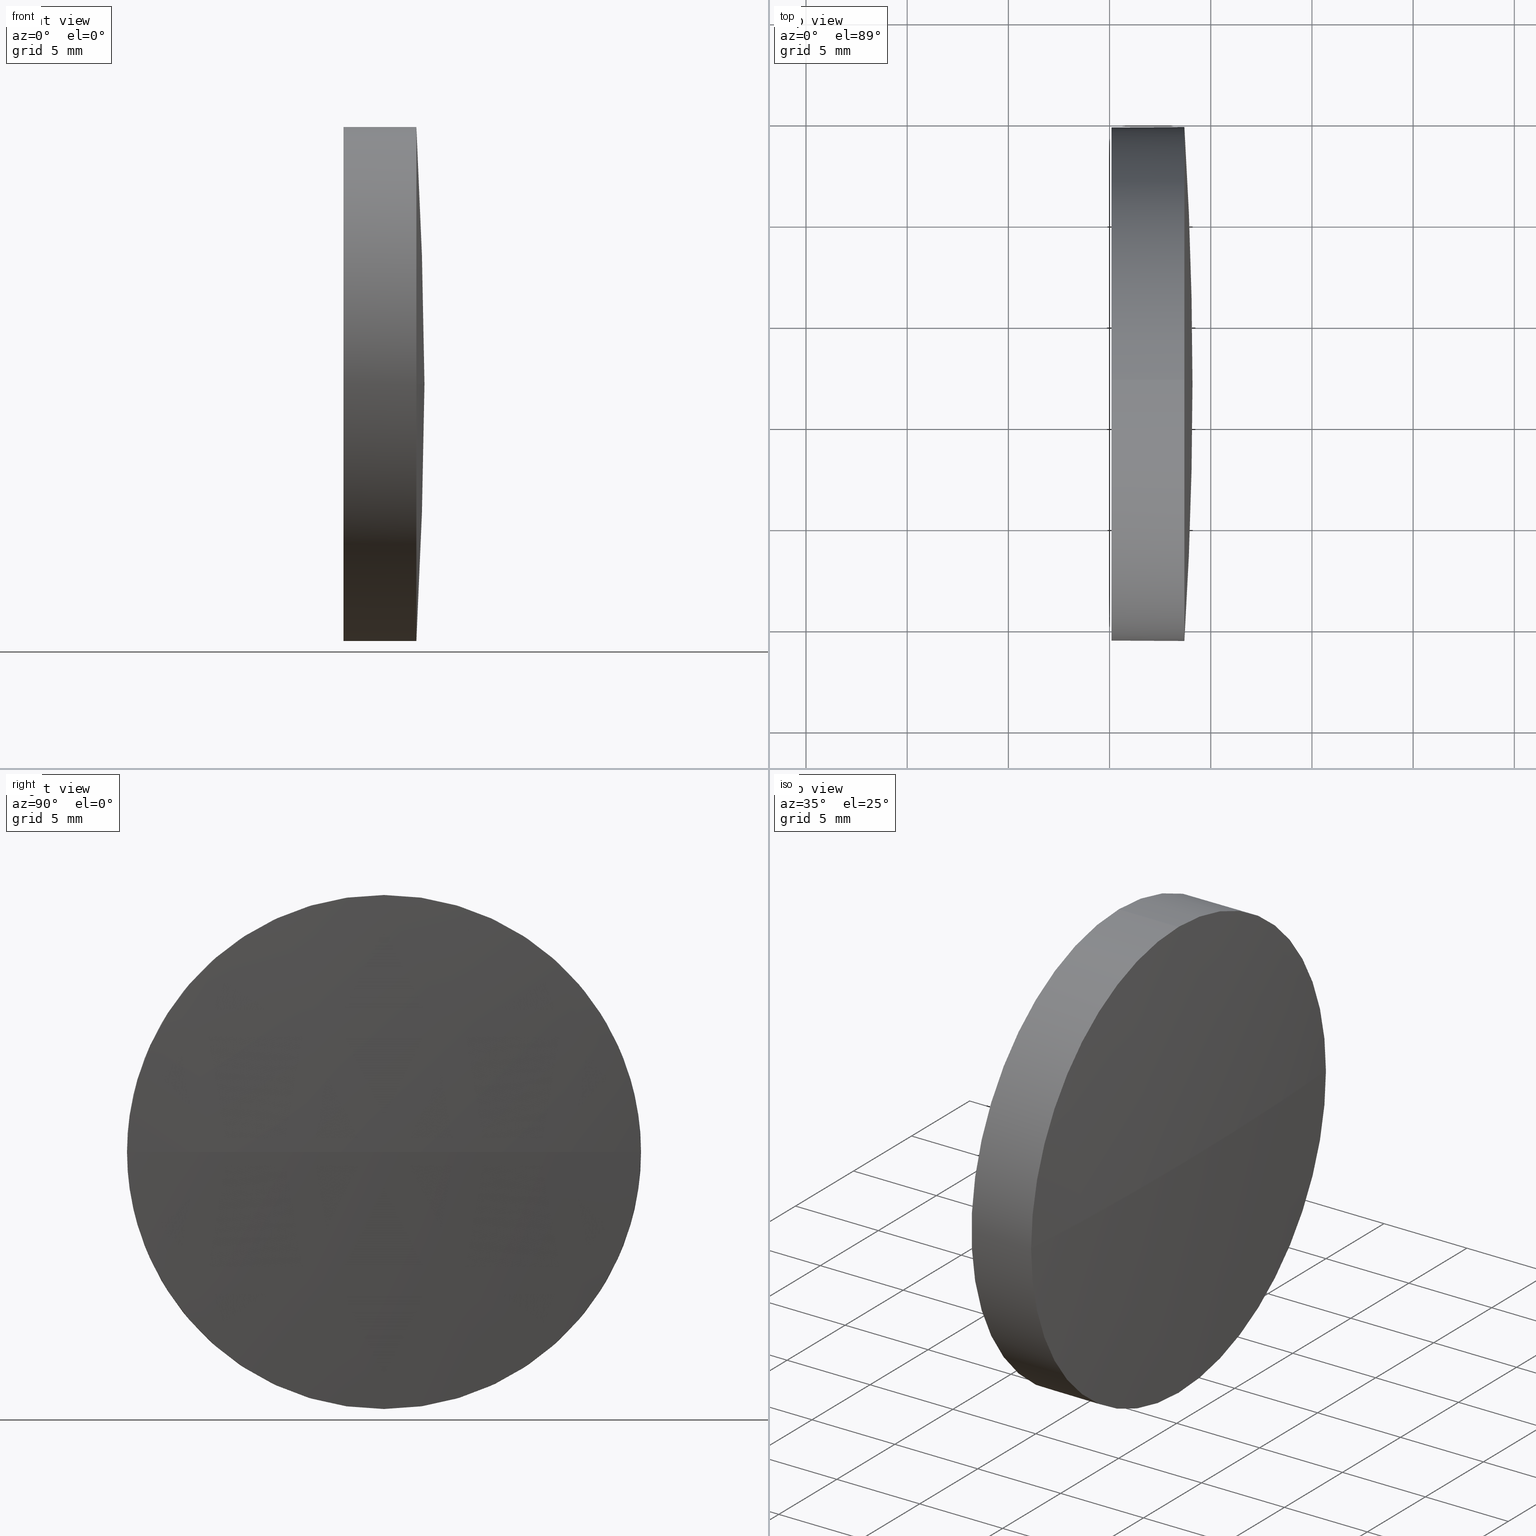
[diagram: canonical four-view strip — front | top / right | iso, engineering-drawing reading convention]
A machine part, canonical four-view strip (front | top / right | iso — engineering-drawing reading convention). The complete STEP part file that produces these views, byte-faithful:
ISO-10303-21;
HEADER;
FILE_DESCRIPTION (( 'STEP AP214' ),
    '1' );
FILE_NAME ('100493.STEP',
    '2019-06-12T05:49:18',
    ( '' ),
    ( '' ),
    'SwSTEP 2.0',
    'SolidWorks 2016',
    '' );
FILE_SCHEMA (( 'AUTOMOTIVE_DESIGN' ));
ENDSEC;

DATA;
#1 = UNCERTAINTY_MEASURE_WITH_UNIT (LENGTH_MEASURE( 1.000000000000000100E-005 ), #46, 'distance_accuracy_value', 'NONE');
#2 = ORIENTED_EDGE ( 'NONE', *, *, #169, .F. ) ;
#3 = DIRECTION ( 'NONE',  ( 0.0000000000000000000, 0.0000000000000000000, 1.000000000000000000 ) ) ;
#4 = DIRECTION ( 'NONE',  ( -1.000000000000000000, 0.0000000000000000000, 0.0000000000000000000 ) ) ;
#5 = PRESENTATION_STYLE_ASSIGNMENT (( #133 ) ) ;
#6 = DIRECTION ( 'NONE',  ( 0.0000000000000000000, 0.0000000000000000000, 1.000000000000000000 ) ) ;
#7 = PRODUCT_RELATED_PRODUCT_CATEGORY ( 'part', '', ( #56 ) ) ;
#8 = ORIENTED_EDGE ( 'NONE', *, *, #37, .T. ) ;
#9 = CARTESIAN_POINT ( 'NONE',  ( 0.0000000000000000000, 0.0000000000000000000, 0.0000000000000000000 ) ) ;
#10 = DIRECTION ( 'NONE',  ( -1.000000000000000000, -0.0000000000000000000, -0.0000000000000000000 ) ) ;
#11 =( GEOMETRIC_REPRESENTATION_CONTEXT ( 3 ) GLOBAL_UNCERTAINTY_ASSIGNED_CONTEXT ( ( #141 ) ) GLOBAL_UNIT_ASSIGNED_CONTEXT ( ( #45, #119, #19 ) ) REPRESENTATION_CONTEXT ( 'NONE', 'WORKASPACE' ) );
#12 = PRODUCT_DEFINITION_SHAPE ( 'NONE', 'NONE',  #106 ) ;
#13 = VERTEX_POINT ( 'NONE', #171 ) ;
#14 = ORIENTED_EDGE ( 'NONE', *, *, #118, .F. ) ;
#15 = CIRCLE ( 'NONE', #86, 12.70000000000001700 ) ;
#16 = AXIS2_PLACEMENT_3D ( 'NONE', #103, #161, #6 ) ;
#17 = DIRECTION ( 'NONE',  ( 0.0000000000000000000, -1.224646799147353200E-016, 1.000000000000000000 ) ) ;
#18 = AXIS2_PLACEMENT_3D ( 'NONE', #125, #163, #32 ) ;
#19 =( NAMED_UNIT ( * ) SI_UNIT ( $, .STERADIAN. ) SOLID_ANGLE_UNIT ( ) );
#20 = CIRCLE ( 'NONE', #68, 201.8124999999973900 ) ;
#21 = EDGE_CURVE ( 'NONE', #155, #126, #38, .T. ) ;
#22 = ORIENTED_EDGE ( 'NONE', *, *, #185, .F. ) ;
#23 = CYLINDRICAL_SURFACE ( 'NONE', #16, 12.70000000000001700 ) ;
#24 = AXIS2_PLACEMENT_3D ( 'NONE', #120, #177, #173 ) ;
#25 = CIRCLE ( 'NONE', #48, 12.70000000000001700 ) ;
#26 = LINE ( 'NONE', #80, #147 ) ;
#27 = MANIFOLD_SOLID_BREP ( '��ת1', #51 ) ;
#28 = CARTESIAN_POINT ( 'NONE',  ( 433.6975226091756200, 147.0190194296691600, 0.0000000000000000000 ) ) ;
#29 = SURFACE_SIDE_STYLE ('',( #159 ) ) ;
#30 = CARTESIAN_POINT ( 'NONE',  ( 433.6975226091756200, 147.0190194296691600, 12.70000000000001700 ) ) ;
#31 = DIRECTION ( 'NONE',  ( 0.0000000000000000000, 0.0000000000000000000, 1.000000000000000000 ) ) ;
#32 = DIRECTION ( 'NONE',  ( 0.0000000000000000000, -1.000000000000000000, 0.0000000000000000000 ) ) ;
#33 = ORIENTED_EDGE ( 'NONE', *, *, #167, .F. ) ;
#34 = DIRECTION ( 'NONE',  ( -1.000000000000000000, -0.0000000000000000000, -0.0000000000000000000 ) ) ;
#35 = EDGE_CURVE ( 'NONE', #36, #123, #26, .T. ) ;
#36 = VERTEX_POINT ( 'NONE', #30 ) ;
#37 = EDGE_CURVE ( 'NONE', #126, #36, #69, .T. ) ;
#38 = CIRCLE ( 'NONE', #72, 12.70000000000001700 ) ;
#39 = ORIENTED_EDGE ( 'NONE', *, *, #37, .F. ) ;
#40 = PRESENTATION_LAYER_ASSIGNMENT (  '', '', ( #83 ) ) ;
#41 = CARTESIAN_POINT ( 'NONE',  ( 430.0975226091756000, 147.0190194296691600, 0.0000000000000000000 ) ) ;
#42 = ORIENTED_EDGE ( 'NONE', *, *, #162, .F. ) ;
#43 = ADVANCED_FACE ( 'NONE', ( #182 ), #23, .T. ) ;
#44 =( NAMED_UNIT ( * ) SI_UNIT ( $, .STERADIAN. ) SOLID_ANGLE_UNIT ( ) );
#45 =( LENGTH_UNIT ( ) NAMED_UNIT ( * ) SI_UNIT ( .MILLI., .METRE. ) );
#46 =( LENGTH_UNIT ( ) NAMED_UNIT ( * ) SI_UNIT ( .MILLI., .METRE. ) );
#47 = CARTESIAN_POINT ( 'NONE',  ( 433.6975226091756200, 147.0190194296691600, 0.0000000000000000000 ) ) ;
#48 = AXIS2_PLACEMENT_3D ( 'NONE', #47, #10, #79 ) ;
#49 = DIRECTION ( 'NONE',  ( 0.0000000000000000000, 0.0000000000000000000, -1.000000000000000000 ) ) ;
#50 = EDGE_LOOP ( 'NONE', ( #42, #73, #170, #98 ) ) ;
#51 = CLOSED_SHELL ( 'NONE', ( #43, #130, #131, #135, #105 ) ) ;
#52 = CYLINDRICAL_SURFACE ( 'NONE', #24, 12.70000000000001700 ) ;
#53 = AXIS2_PLACEMENT_3D ( 'NONE', #41, #90, #57 ) ;
#54 = ORIENTED_EDGE ( 'NONE', *, *, #162, .T. ) ;
#55 = AXIS2_PLACEMENT_3D ( 'NONE', #112, #17, #62 ) ;
#56 = PRODUCT ( '100493', '100493', '', ( #180 ) ) ;
#57 = DIRECTION ( 'NONE',  ( 0.0000000000000000000, 0.0000000000000000000, -1.000000000000000000 ) ) ;
#58 =( NAMED_UNIT ( * ) PLANE_ANGLE_UNIT ( ) SI_UNIT ( $, .RADIAN. ) );
#59 = APPLICATION_CONTEXT ( 'automotive_design' ) ;
#60 = PRODUCT_DEFINITION_CONTEXT ( 'detailed design', #59, 'design' ) ;
#61 =( LENGTH_UNIT ( ) NAMED_UNIT ( * ) SI_UNIT ( .MILLI., .METRE. ) );
#62 = DIRECTION ( 'NONE',  ( 0.0000000000000000000, -1.000000000000000000, -1.224646799147353200E-016 ) ) ;
#63 = CARTESIAN_POINT ( 'NONE',  ( 434.0975226091756000, 147.0190194296694700, 0.0000000000000000000 ) ) ;
#64 = DIRECTION ( 'NONE',  ( 0.0000000000000000000, 0.0000000000000000000, 1.000000000000000000 ) ) ;
#65 = CARTESIAN_POINT ( 'NONE',  ( 430.0975226091756000, 147.0190194296691600, 12.70000000000001700 ) ) ;
#66 = SURFACE_SIDE_STYLE ('',( #85 ) ) ;
#67 = CIRCLE ( 'NONE', #55, 201.8124999999973900 ) ;
#68 = AXIS2_PLACEMENT_3D ( 'NONE', #92, #49, #4 ) ;
#69 = CIRCLE ( 'NONE', #74, 12.70000000000001700 ) ;
#70 = ORIENTED_EDGE ( 'NONE', *, *, #167, .T. ) ;
#71 = FACE_OUTER_BOUND ( 'NONE', #108, .T. ) ;
#72 = AXIS2_PLACEMENT_3D ( 'NONE', #137, #121, #3 ) ;
#73 = ORIENTED_EDGE ( 'NONE', *, *, #169, .T. ) ;
#74 = AXIS2_PLACEMENT_3D ( 'NONE', #151, #153, #122 ) ;
#75 = SHAPE_DEFINITION_REPRESENTATION ( #12, #93 ) ;
#76 = SPHERICAL_SURFACE ( 'NONE', #18, 201.8124999999973900 ) ;
#77 = EDGE_LOOP ( 'NONE', ( #70, #138 ) ) ;
#78 = DIRECTION ( 'NONE',  ( -1.000000000000000000, -0.0000000000000000000, -0.0000000000000000000 ) ) ;
#79 = DIRECTION ( 'NONE',  ( 0.0000000000000000000, 0.0000000000000000000, 1.000000000000000000 ) ) ;
#80 = CARTESIAN_POINT ( 'NONE',  ( 424.4676265580184200, 147.0190194296691600, 12.70000000000001700 ) ) ;
#81 = ORIENTED_EDGE ( 'NONE', *, *, #35, .F. ) ;
#82 = CARTESIAN_POINT ( 'NONE',  ( 232.2850226091782100, 147.0190194296694700, 0.0000000000000000000 ) ) ;
#83 = STYLED_ITEM ( 'NONE', ( #5 ), #27 ) ;
#84 = APPLICATION_CONTEXT ( 'automotive_design' ) ;
#85 = SURFACE_STYLE_FILL_AREA ( #95 ) ;
#86 = AXIS2_PLACEMENT_3D ( 'NONE', #28, #154, #64 ) ;
#87 = EDGE_LOOP ( 'NONE', ( #2, #54, #129, #39 ) ) ;
#88 =( GEOMETRIC_REPRESENTATION_CONTEXT ( 3 ) GLOBAL_UNCERTAINTY_ASSIGNED_CONTEXT ( ( #1 ) ) GLOBAL_UNIT_ASSIGNED_CONTEXT ( ( #46, #58, #44 ) ) REPRESENTATION_CONTEXT ( 'NONE', 'WORKASPACE' ) );
#89 = VERTEX_POINT ( 'NONE', #63 ) ;
#90 = DIRECTION ( 'NONE',  ( 1.000000000000000000, 0.0000000000000000000, 0.0000000000000000000 ) ) ;
#91 = ORIENTED_EDGE ( 'NONE', *, *, #118, .T. ) ;
#92 = CARTESIAN_POINT ( 'NONE',  ( 232.2850226091782100, 147.0190194296694700, 0.0000000000000000000 ) ) ;
#93 = ADVANCED_BREP_SHAPE_REPRESENTATION ( '100493', ( #27, #127 ), #11 ) ;
#94 = DIRECTION ( 'NONE',  ( -1.000000000000000000, -0.0000000000000000000, -0.0000000000000000000 ) ) ;
#95 = FILL_AREA_STYLE ('',( #174 ) ) ;
#96 = DIRECTION ( 'NONE',  ( 0.0000000000000000000, 0.0000000000000000000, 1.000000000000000000 ) ) ;
#97 = UNCERTAINTY_MEASURE_WITH_UNIT (LENGTH_MEASURE( 1.000000000000000100E-005 ), #61, 'distance_accuracy_value', 'NONE');
#98 = ORIENTED_EDGE ( 'NONE', *, *, #183, .F. ) ;
#99 = AXIS2_PLACEMENT_3D ( 'NONE', #82, #96, #157 ) ;
#100 = VERTEX_POINT ( 'NONE', #176 ) ;
#101 = PRODUCT_DEFINITION_FORMATION_WITH_SPECIFIED_SOURCE ( '�κ�', '', #56, .NOT_KNOWN. ) ;
#102 = FACE_OUTER_BOUND ( 'NONE', #50, .T. ) ;
#103 = CARTESIAN_POINT ( 'NONE',  ( 424.4676265580184200, 147.0190194296691600, 0.0000000000000000000 ) ) ;
#104 = CARTESIAN_POINT ( 'NONE',  ( 430.0975226091756000, 147.0190194296691600, 0.0000000000000000000 ) ) ;
#105 = ADVANCED_FACE ( 'NONE', ( #113 ), #117, .F. ) ;
#106 = PRODUCT_DEFINITION ( 'δ֪', '', #101, #60 ) ;
#107 = APPLICATION_PROTOCOL_DEFINITION ( 'draft international standard', 'automotive_design', 1998, #84 ) ;
#108 = EDGE_LOOP ( 'NONE', ( #14, #156, #8, #184, #22 ) ) ;
#109 =( NAMED_UNIT ( * ) PLANE_ANGLE_UNIT ( ) SI_UNIT ( $, .RADIAN. ) );
#110 = DIRECTION ( 'NONE',  ( 0.0000000000000000000, 0.0000000000000000000, 1.000000000000000000 ) ) ;
#111 = STYLED_ITEM ( 'NONE', ( #146 ), #93 ) ;
#112 = CARTESIAN_POINT ( 'NONE',  ( 232.2850226091782100, 147.0190194296694700, 0.0000000000000000000 ) ) ;
#113 = FACE_OUTER_BOUND ( 'NONE', #77, .T. ) ;
#114 = COLOUR_RGB ( '',1.000000000000000000, 1.000000000000000000, 1.000000000000000000 ) ;
#115 = COLOUR_RGB ( '',1.000000000000000000, 1.000000000000000000, 1.000000000000000000 ) ;
#116 = PRESENTATION_LAYER_ASSIGNMENT (  '', '', ( #111 ) ) ;
#117 = PLANE ( 'NONE',  #53 ) ;
#118 = EDGE_CURVE ( 'NONE', #155, #13, #172, .T. ) ;
#119 =( NAMED_UNIT ( * ) PLANE_ANGLE_UNIT ( ) SI_UNIT ( $, .RADIAN. ) );
#120 = CARTESIAN_POINT ( 'NONE',  ( 424.4676265580184200, 147.0190194296691600, 0.0000000000000000000 ) ) ;
#121 = DIRECTION ( 'NONE',  ( -1.000000000000000000, -0.0000000000000000000, -0.0000000000000000000 ) ) ;
#122 = DIRECTION ( 'NONE',  ( 0.0000000000000000000, 0.0000000000000000000, 1.000000000000000000 ) ) ;
#123 = VERTEX_POINT ( 'NONE', #65 ) ;
#124 = DIRECTION ( 'NONE',  ( 1.000000000000000000, 0.0000000000000000000, 0.0000000000000000000 ) ) ;
#125 = CARTESIAN_POINT ( 'NONE',  ( 232.2850226091782100, 147.0190194296694700, 0.0000000000000000000 ) ) ;
#126 = VERTEX_POINT ( 'NONE', #139 ) ;
#127 = AXIS2_PLACEMENT_3D ( 'NONE', #9, #136, #124 ) ;
#128 = MECHANICAL_DESIGN_GEOMETRIC_PRESENTATION_REPRESENTATION (  '', ( #111 ), #165 ) ;
#129 = ORIENTED_EDGE ( 'NONE', *, *, #134, .F. ) ;
#130 = ADVANCED_FACE ( 'NONE', ( #186 ), #76, .T. ) ;
#131 = ADVANCED_FACE ( 'NONE', ( #102 ), #143, .T. ) ;
#132 = FILL_AREA_STYLE ('',( #149 ) ) ;
#133 = SURFACE_STYLE_USAGE ( .BOTH. , #29 ) ;
#134 = EDGE_CURVE ( 'NONE', #36, #100, #25, .T. ) ;
#135 = ADVANCED_FACE ( 'NONE', ( #71 ), #52, .T. ) ;
#136 = DIRECTION ( 'NONE',  ( 0.0000000000000000000, 0.0000000000000000000, 1.000000000000000000 ) ) ;
#137 = CARTESIAN_POINT ( 'NONE',  ( 433.6975226091756200, 147.0190194296691600, 0.0000000000000000000 ) ) ;
#138 = ORIENTED_EDGE ( 'NONE', *, *, #185, .T. ) ;
#139 = CARTESIAN_POINT ( 'NONE',  ( 433.6975226091756200, 134.3190194296692800, 0.0000000000000000000 ) ) ;
#140 = MECHANICAL_DESIGN_GEOMETRIC_PRESENTATION_REPRESENTATION (  '', ( #83 ), #88 ) ;
#141 = UNCERTAINTY_MEASURE_WITH_UNIT (LENGTH_MEASURE( 1.000000000000000100E-005 ), #45, 'distance_accuracy_value', 'NONE');
#142 = VECTOR ( 'NONE', #34, 1000.000000000000000 ) ;
#143 = SPHERICAL_SURFACE ( 'NONE', #99, 201.8124999999973900 ) ;
#144 = AXIS2_PLACEMENT_3D ( 'NONE', #152, #78, #31 ) ;
#145 = DIRECTION ( 'NONE',  ( -1.000000000000000000, -0.0000000000000000000, -0.0000000000000000000 ) ) ;
#146 = PRESENTATION_STYLE_ASSIGNMENT (( #150 ) ) ;
#147 = VECTOR ( 'NONE', #145, 1000.000000000000000 ) ;
#148 =( NAMED_UNIT ( * ) SI_UNIT ( $, .STERADIAN. ) SOLID_ANGLE_UNIT ( ) );
#149 = FILL_AREA_STYLE_COLOUR ( '', #115 ) ;
#150 = SURFACE_STYLE_USAGE ( .BOTH. , #66 ) ;
#151 = CARTESIAN_POINT ( 'NONE',  ( 433.6975226091756200, 147.0190194296691600, 0.0000000000000000000 ) ) ;
#152 = CARTESIAN_POINT ( 'NONE',  ( 430.0975226091756000, 147.0190194296691600, 0.0000000000000000000 ) ) ;
#153 = DIRECTION ( 'NONE',  ( -1.000000000000000000, -0.0000000000000000000, -0.0000000000000000000 ) ) ;
#154 = DIRECTION ( 'NONE',  ( -1.000000000000000000, -0.0000000000000000000, -0.0000000000000000000 ) ) ;
#155 = VERTEX_POINT ( 'NONE', #164 ) ;
#156 = ORIENTED_EDGE ( 'NONE', *, *, #21, .T. ) ;
#157 = DIRECTION ( 'NONE',  ( 0.0000000000000000000, -1.000000000000000000, 0.0000000000000000000 ) ) ;
#158 = ORIENTED_EDGE ( 'NONE', *, *, #183, .T. ) ;
#159 = SURFACE_STYLE_FILL_AREA ( #132 ) ;
#160 = APPLICATION_PROTOCOL_DEFINITION ( 'draft international standard', 'automotive_design', 1998, #59 ) ;
#161 = DIRECTION ( 'NONE',  ( -1.000000000000000000, -0.0000000000000000000, -0.0000000000000000000 ) ) ;
#162 = EDGE_CURVE ( 'NONE', #89, #100, #67, .T. ) ;
#163 = DIRECTION ( 'NONE',  ( 0.0000000000000000000, 0.0000000000000000000, 1.000000000000000000 ) ) ;
#164 = CARTESIAN_POINT ( 'NONE',  ( 433.6975226091756200, 147.0190194296691600, -12.70000000000001700 ) ) ;
#165 =( GEOMETRIC_REPRESENTATION_CONTEXT ( 3 ) GLOBAL_UNCERTAINTY_ASSIGNED_CONTEXT ( ( #97 ) ) GLOBAL_UNIT_ASSIGNED_CONTEXT ( ( #61, #109, #148 ) ) REPRESENTATION_CONTEXT ( 'NONE', 'WORKASPACE' ) );
#166 = AXIS2_PLACEMENT_3D ( 'NONE', #104, #94, #110 ) ;
#167 = EDGE_CURVE ( 'NONE', #123, #13, #178, .T. ) ;
#168 = CIRCLE ( 'NONE', #166, 12.70000000000001700 ) ;
#169 = EDGE_CURVE ( 'NONE', #89, #126, #20, .T. ) ;
#170 = ORIENTED_EDGE ( 'NONE', *, *, #21, .F. ) ;
#171 = CARTESIAN_POINT ( 'NONE',  ( 430.0975226091756000, 147.0190194296691600, -12.70000000000001700 ) ) ;
#172 = LINE ( 'NONE', #179, #142 ) ;
#173 = DIRECTION ( 'NONE',  ( 0.0000000000000000000, 0.0000000000000000000, 1.000000000000000000 ) ) ;
#174 = FILL_AREA_STYLE_COLOUR ( '', #114 ) ;
#175 = EDGE_LOOP ( 'NONE', ( #158, #91, #33, #81, #181 ) ) ;
#176 = CARTESIAN_POINT ( 'NONE',  ( 433.6975226091756200, 159.7190194296693700, 1.555301434917123000E-015 ) ) ;
#177 = DIRECTION ( 'NONE',  ( -1.000000000000000000, -0.0000000000000000000, -0.0000000000000000000 ) ) ;
#178 = CIRCLE ( 'NONE', #144, 12.70000000000001700 ) ;
#179 = CARTESIAN_POINT ( 'NONE',  ( 424.4676265580184200, 147.0190194296691600, -12.70000000000001700 ) ) ;
#180 = PRODUCT_CONTEXT ( 'NONE', #84, 'mechanical' ) ;
#181 = ORIENTED_EDGE ( 'NONE', *, *, #134, .T. ) ;
#182 = FACE_OUTER_BOUND ( 'NONE', #175, .T. ) ;
#183 = EDGE_CURVE ( 'NONE', #100, #155, #15, .T. ) ;
#184 = ORIENTED_EDGE ( 'NONE', *, *, #35, .T. ) ;
#185 = EDGE_CURVE ( 'NONE', #13, #123, #168, .T. ) ;
#186 = FACE_OUTER_BOUND ( 'NONE', #87, .T. ) ;
ENDSEC;
END-ISO-10303-21;
